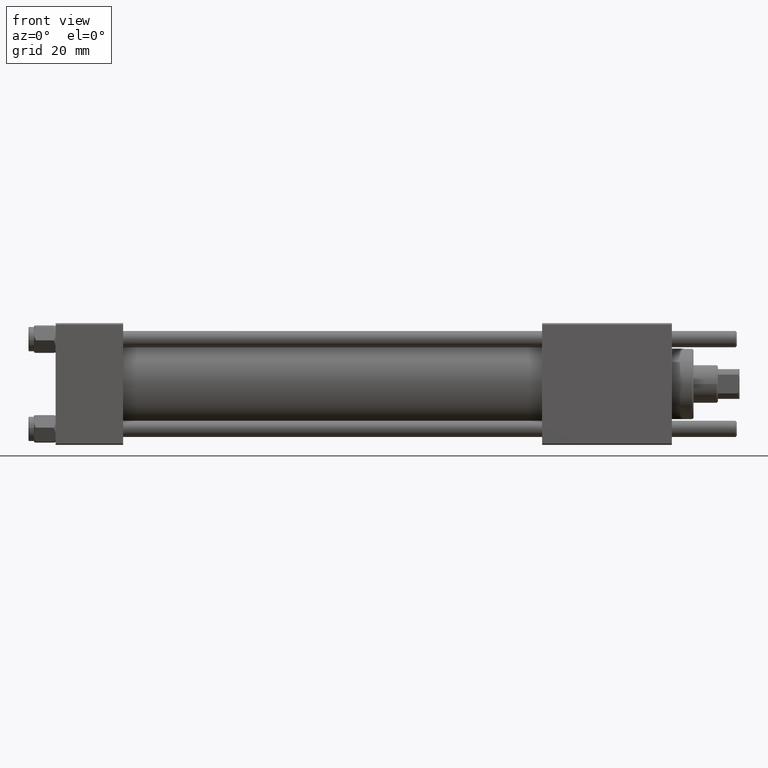
[diagram: clean part render]
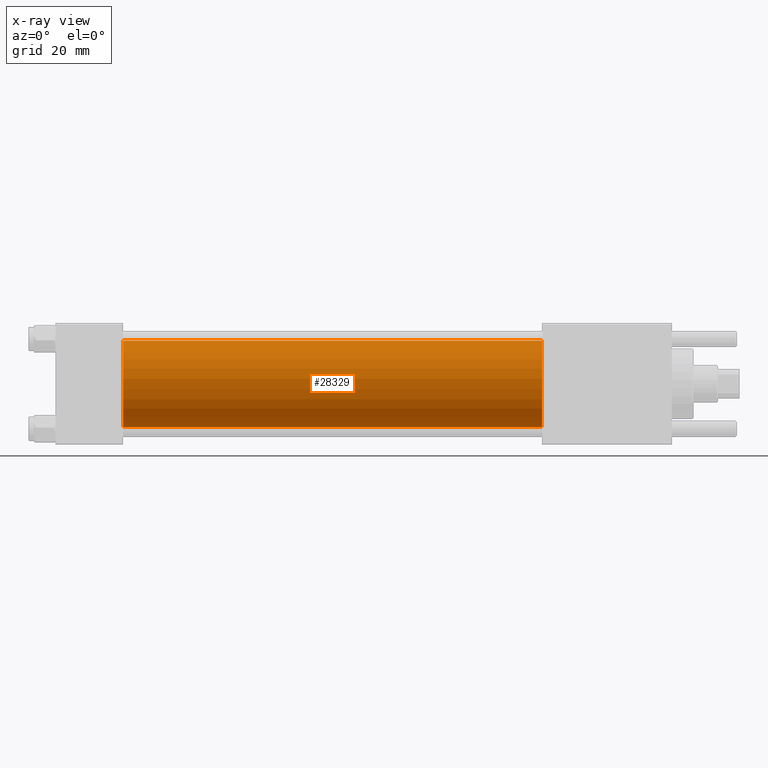
[diagram: x-ray — body ghosted, one internal face saturated and labeled with its STEP entity id]
A machine part, front view, then the same camera in x-ray: the body is ghosted and one INTERNAL B-rep face — a face not visible from any outside direction — is saturated and labeled: STEP entity #28329.
In plain terms, the highlighted cylindrical surface (partial cylindrical patch) has radius 16 mm, axis along (-1, -0, -0).
Its self-contained STEP definition (entity closure, byte-faithful):
#1877 = ORIENTED_EDGE ( 'NONE', *, *, #34929, .T. ) ;
#3399 = DIRECTION ( 'NONE',  ( 0.000000000000000000, 0.000000000000000000, -1.000000000000000000 ) ) ;
#3720 = DIRECTION ( 'NONE',  ( -1.000000000000000000, -0.000000000000000000, -0.000000000000000000 ) ) ;
#7127 = AXIS2_PLACEMENT_3D ( 'NONE', #18096, #17531, #35632 ) ;
#7132 = CARTESIAN_POINT ( 'NONE',  ( 180.0000000000000000, -2.602085213965210642E-15, 0.000000000000000000 ) ) ;
#7835 = VERTEX_POINT ( 'NONE', #16038 ) ;
#8583 = LINE ( 'NONE', #31267, #22755 ) ;
#9254 = VERTEX_POINT ( 'NONE', #30250 ) ;
#9818 = ORIENTED_EDGE ( 'NONE', *, *, #33959, .F. ) ;
#11786 = LINE ( 'NONE', #51670, #48447 ) ;
#12556 = CIRCLE ( 'NONE', #21746, 16.00000000000000000 ) ;
#16038 = CARTESIAN_POINT ( 'NONE',  ( 180.0000000000000000, -6.426503353294456087E-16, -16.00000000000000000 ) ) ;
#17531 = DIRECTION ( 'NONE',  ( -1.000000000000000000, -0.000000000000000000, -0.000000000000000000 ) ) ;
#18096 = CARTESIAN_POINT ( 'NONE',  ( 180.0000000000000000, -2.602085213965210642E-15, 0.000000000000000000 ) ) ;
#21746 = AXIS2_PLACEMENT_3D ( 'NONE', #7132, #38754, #3399 ) ;
#22755 = VECTOR ( 'NONE', #26113, 1000.000000000000000 ) ;
#23610 = VERTEX_POINT ( 'NONE', #34730 ) ;
#25510 = ORIENTED_EDGE ( 'NONE', *, *, #52185, .F. ) ;
#25812 = EDGE_CURVE ( 'NONE', #23610, #7835, #12556, .T. ) ;
#26113 = DIRECTION ( 'NONE',  ( -1.000000000000000000, -0.000000000000000000, -0.000000000000000000 ) ) ;
#26667 = AXIS2_PLACEMENT_3D ( 'NONE', #28339, #46420, #42132 ) ;
#26710 = FACE_OUTER_BOUND ( 'NONE', #44878, .T. ) ;
#28329 = ADVANCED_FACE ( 'NONE', ( #26710 ), #39950, .F. ) ;
#28339 = CARTESIAN_POINT ( 'NONE',  ( 25.00000000000000000, -2.602085213965210642E-15, 0.000000000000000000 ) ) ;
#28533 = ORIENTED_EDGE ( 'NONE', *, *, #25812, .T. ) ;
#30250 = CARTESIAN_POINT ( 'NONE',  ( 25.00000000000000000, -2.602085213965210642E-15, 16.00000000000000000 ) ) ;
#31267 = CARTESIAN_POINT ( 'NONE',  ( 180.0000000000000000, -2.602085213965210642E-15, 16.00000000000000000 ) ) ;
#33959 = EDGE_CURVE ( 'NONE', #23610, #9254, #8583, .T. ) ;
#34730 = CARTESIAN_POINT ( 'NONE',  ( 180.0000000000000000, -2.602085213965210642E-15, 16.00000000000000000 ) ) ;
#34929 = EDGE_CURVE ( 'NONE', #7835, #37540, #11786, .T. ) ;
#35632 = DIRECTION ( 'NONE',  ( 0.000000000000000000, 0.000000000000000000, 1.000000000000000000 ) ) ;
#37540 = VERTEX_POINT ( 'NONE', #48944 ) ;
#38754 = DIRECTION ( 'NONE',  ( 1.000000000000000000, 0.000000000000000000, 0.000000000000000000 ) ) ;
#39950 = CYLINDRICAL_SURFACE ( 'NONE', #7127, 16.00000000000000000 ) ;
#42132 = DIRECTION ( 'NONE',  ( 0.000000000000000000, 0.000000000000000000, -1.000000000000000000 ) ) ;
#44878 = EDGE_LOOP ( 'NONE', ( #28533, #1877, #25510, #9818 ) ) ;
#46420 = DIRECTION ( 'NONE',  ( 1.000000000000000000, 0.000000000000000000, 0.000000000000000000 ) ) ;
#48447 = VECTOR ( 'NONE', #3720, 1000.000000000000000 ) ;
#48944 = CARTESIAN_POINT ( 'NONE',  ( 25.00000000000000000, -6.426503353294456087E-16, -16.00000000000000000 ) ) ;
#49563 = CIRCLE ( 'NONE', #26667, 16.00000000000000000 ) ;
#51670 = CARTESIAN_POINT ( 'NONE',  ( 180.0000000000000000, -6.426503353294456087E-16, -16.00000000000000000 ) ) ;
#52185 = EDGE_CURVE ( 'NONE', #9254, #37540, #49563, .T. ) ;